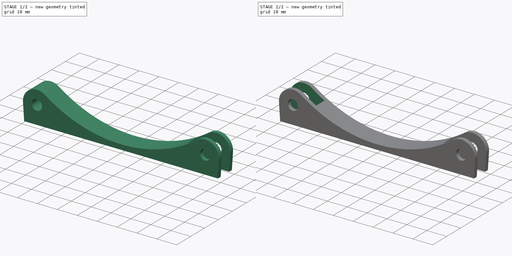
[diagram: build sequence overview — one tinted view per stage of 2, left to right]
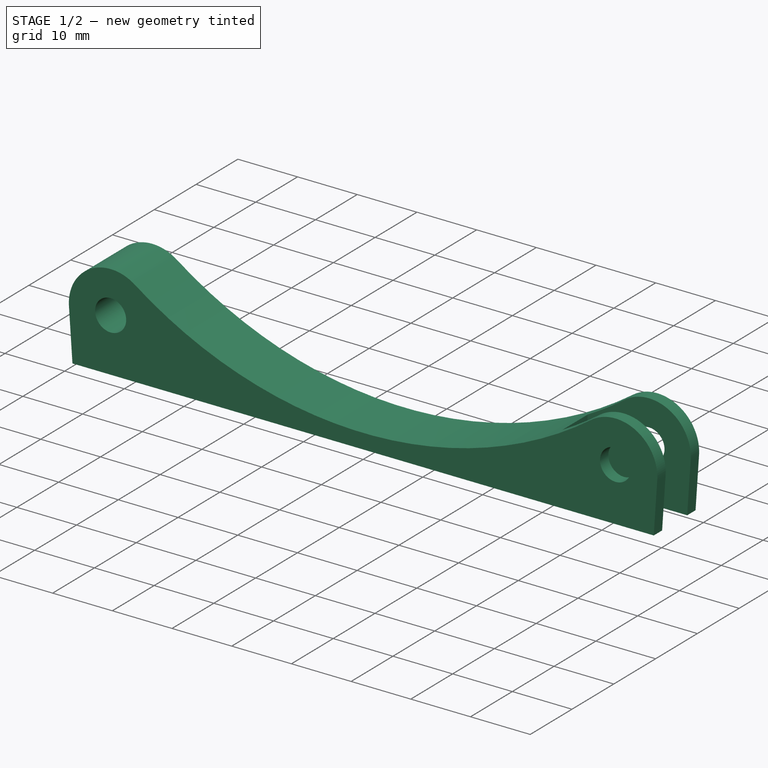
[diagram: stage 1 of 2 — iso view after this stage's code; geometry added in this stage tinted green]
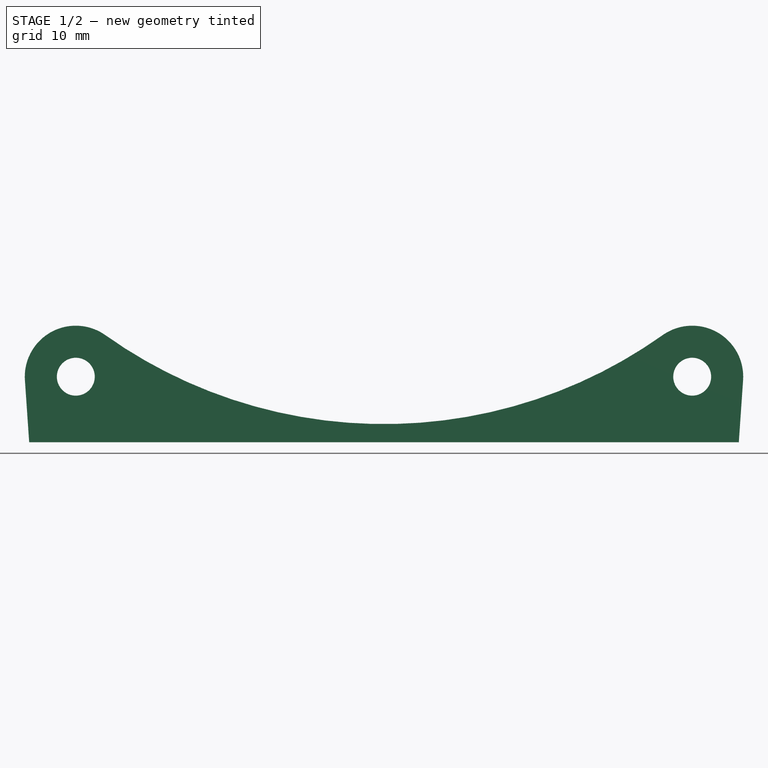
[diagram: stage 1 of 2 — front view after this stage's code; geometry added in this stage tinted green]
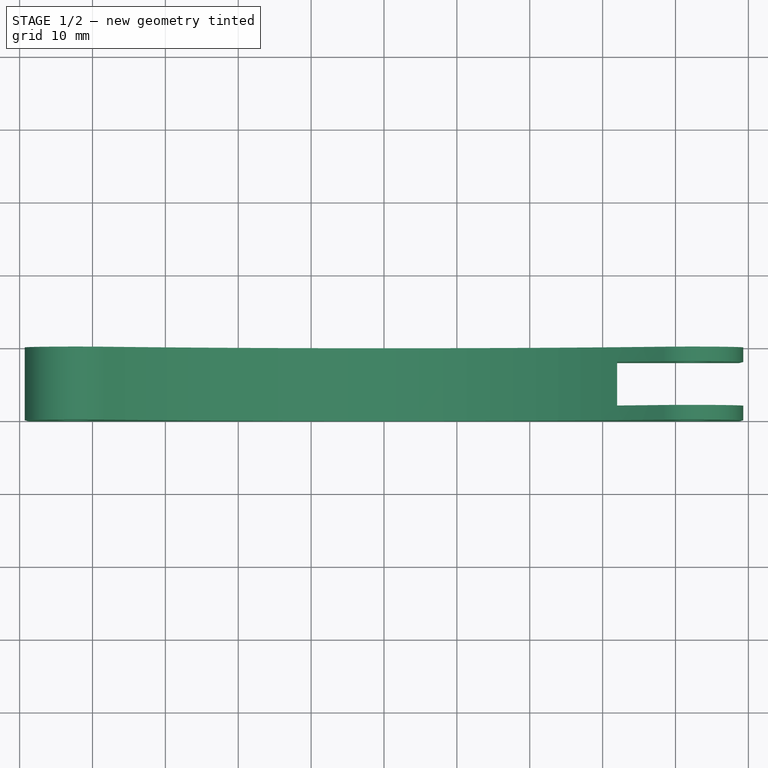
[diagram: stage 1 of 2 — top view after this stage's code; geometry added in this stage tinted green]
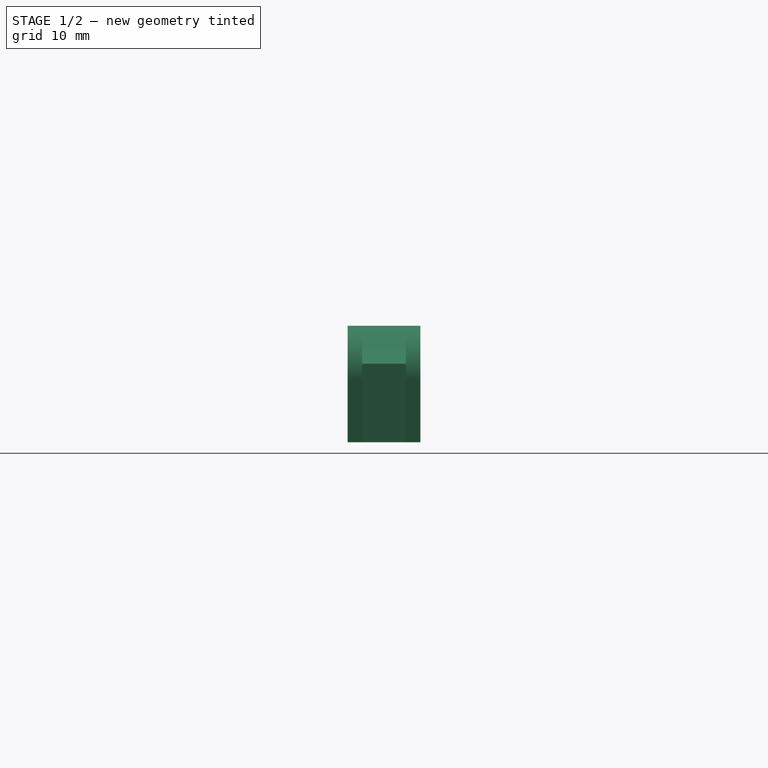
[diagram: stage 1 of 2 — right view after this stage's code; geometry added in this stage tinted green]
FCSTD DOCUMENT  (FreeCAD 0.19R24291 (Git))
Label: supportRollers
License: All rights reserved
LicenseURL: http://en.wikipedia.org/wiki/All_rights_reserved
objects: Sketcher::SketchObject×3, PartDesign::Pad×1, PartDesign::Plane×1, PartDesign::Pocket×1, PartDesign::Mirrored×1, PartDesign::Body×1
note: 10 computed .brp shape members not serialized (recipe doc carries the construction recipe); baked Part::Feature solids carry a one-line shape summary decoded from their .brp

FEATURE [Sketcher::SketchObject] Sketch
  FullyConstrained = true
  MapMode = 5
  Placement = pos=(0,0,0) rot=(1,0,0;1.5708rad)
  Support = -> [XZ_Plane]
  sketch-geometry (14):
    g0: ArcOfCircle CenterX=0 CenterY=68.5 CenterZ=0 NormalX=0 NormalY=0 NormalZ=1 AngleXU=0 Radius=66 StartAngle=4.09444 EndAngle=5.33034
    g1: GeomPoint X=0 Y=2.5 Z=0
    g2: Circle CenterX=-42.2936 CenterY=9 CenterZ=0 NormalX=0 NormalY=0 NormalZ=1 AngleXU=0 Radius=8
    g3: LineSegment StartX=-42.2936 StartY=9 StartZ=0 EndX=-38.2381 EndY=14.7055 EndZ=0
    g4: LineSegment StartX=-42.2936 StartY=1 StartZ=0 EndX=-42.2936 EndY=0 EndZ=0
    g5: ArcOfCircle CenterX=-42.2936 CenterY=9 CenterZ=0 NormalX=0 NormalY=0 NormalZ=1 AngleXU=0 Radius=7 StartAngle=0.952847 EndAngle=3.21028
    g6: LineSegment StartX=-49.2771 StartY=8.51954 StartZ=0 EndX=-48.691 EndY=0 EndZ=0
    g7: LineSegment StartX=-48.691 StartY=0 StartZ=0 EndX=48.691 EndY=0 EndZ=0
    g8: LineSegment StartX=-42.2936 StartY=9 StartZ=0 EndX=-48.691 EndY=0 EndZ=0
    g9: ArcOfCircle CenterX=42.2936 CenterY=9 CenterZ=0 NormalX=0 NormalY=0 NormalZ=1 AngleXU=0 Radius=7 StartAngle=6.21449 EndAngle=8.47193
    g10: LineSegment StartX=49.2771 StartY=8.51954 StartZ=0 EndX=48.691 EndY=0 EndZ=0
    g11: Circle CenterX=-42.2936 CenterY=9 CenterZ=0 NormalX=0 NormalY=0 NormalZ=1 AngleXU=0 Radius=2.6
    g12: Circle CenterX=42.2936 CenterY=9 CenterZ=0 NormalX=0 NormalY=0 NormalZ=1 AngleXU=0 Radius=2.6
    g13: ArcOfCircle CenterX=1.535e-13 CenterY=68.5 CenterZ=0 NormalX=0 NormalY=0 NormalZ=1 AngleXU=0 Radius=65 StartAngle=1.6478 EndAngle=7.77698
  constraints (37):
    c: PointOnObject(g0,g-2)
    c: Radius(g0) = 66
    c: PointOnObject(g1,g0)
    c: PointOnObject(g1,g-2)
    c: DistanceY(g-1,g1) = 2.5
    c: Radius(g2) = 8
    c: Coincident(g3,g2)
    c: Perpendicular(g0,g3)
    c: Distance(g3) = 7
    c: PointOnObject(g4,g2)
    c: PointOnObject(g4,g-1)
    c: Vertical(g4)
    c: Perpendicular(g2,g4)
    c: DistanceY(g4,g4) = 1
    c: Coincident(g0,g3)
    c: Horizontal(g3,g0)
    c: Coincident(g5,g2)
    c: Coincident(g5,g3)
    c: PointOnObject(g6,g-1)
    c: Coincident(g7,g6)
    c: Tangent(g6,g5) = -1.5708
    c: Coincident(g8,g2)
    c: Parallel(g8,g3)
    c: Coincident(g6,g8)
    c: Symmetric(g7,g8,g-2)
    c: Coincident(g10,g7)
    c: Tangent(g10,g9) = 1.5708
    c: Radius(g9) = 7
    c: Tangent(g9,g0) = 1.5708
    c: Coincident(g11,g2)
    c: Coincident(g12,g9)
    c: Radius(g11) = 2.6
    c: Radius(g12) = 2.6
    c: Radius(g13) = 65
    c: Symmetric(g13,g13,g-2)
    c: Tangent(g2,g13)
    c: DistanceX(g13,g13) = 10
FEATURE [PartDesign::Pad] Pad
  Direction = (1,1,1)
  Length = 10
  Length2 = 100
  Placement = pos=(0,0,0) rot=(1,0,0;1.5708rad)
  Profile = -> Sketch
  Refine = true
  Type = 0
FEATURE [Sketcher::SketchObject] Sketch001
  FullyConstrained = true
  MapMode = 5
  Placement = pos=(48.4616,7e-16,-3.33412) rot=(0.730971,0,0.682409;3.14159rad)
  Support = -> [Pad]
FEATURE [PartDesign::Plane] DatumPlane
  AttachmentOffset = pos=(0,0,50) rot=(0,0,1;0rad)
  Length = 60
  MapMode = 5
  Placement = pos=(50,-1.11e-14,1.11e-14) rot=(0.57735,0.57735,0.57735;2.0944rad)
  ResizeMode = 0
  Support = -> [YZ_Plane]
  Width = 60
FEATURE [Sketcher::SketchObject] Sketch002
  FullyConstrained = false
  MapMode = 5
  Placement = pos=(50,-1.11e-14,1.11e-14) rot=(0.57735,0.57735,0.57735;2.0944rad)
  Support = -> [DatumPlane]
  sketch-geometry (4):
    g0: LineSegment StartX=-2 StartY=-0.913862 StartZ=0 EndX=-8 EndY=-0.913862 EndZ=0
    g1: LineSegment StartX=-8 StartY=-0.913862 StartZ=0 EndX=-8 EndY=18.5601 EndZ=0
    g2: LineSegment StartX=-8 StartY=18.5601 StartZ=0 EndX=-2 EndY=18.5601 EndZ=0
    g3: LineSegment StartX=-2 StartY=18.5601 StartZ=0 EndX=-2 EndY=-0.913862 EndZ=0
  constraints (10):
    c: Coincident(g0,g1)
    c: Coincident(g1,g2)
    c: Coincident(g2,g3)
    c: Coincident(g3,g0)
    c: Horizontal(g0)
    c: Horizontal(g2)
    c: Vertical(g1)
    c: Vertical(g3)
    c: DistanceX(g0,g-1) = 2
    c: DistanceX(g0,g0) = 6
FEATURE [PartDesign::Pocket] Pocket
  BaseFeature = -> Pad
  Length = 18
  Length2 = 100
  Placement = pos=(0,0,0) rot=(1,0,0;1.5708rad)
  Profile = -> Sketch002
  Refine = true
  Type = 0
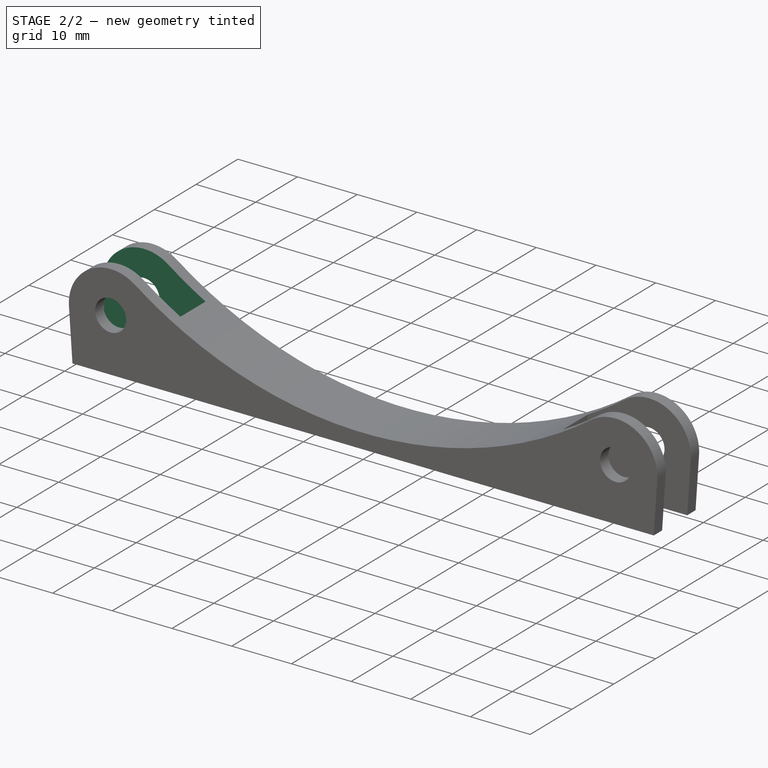
[diagram: stage 2 of 2 — iso view after this stage's code; geometry added in this stage tinted green]
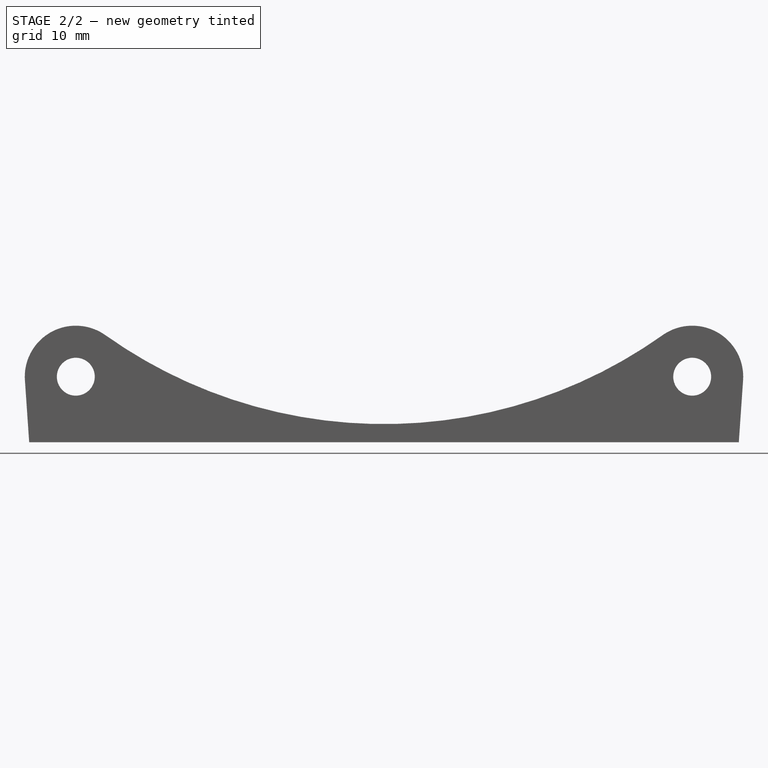
[diagram: stage 2 of 2 — front view after this stage's code; geometry added in this stage tinted green]
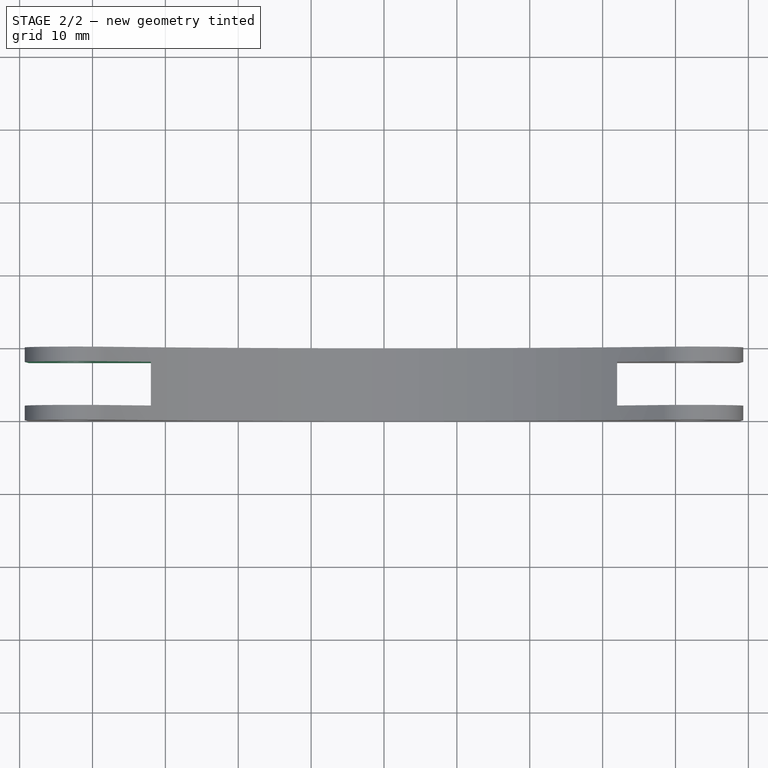
[diagram: stage 2 of 2 — top view after this stage's code; geometry added in this stage tinted green]
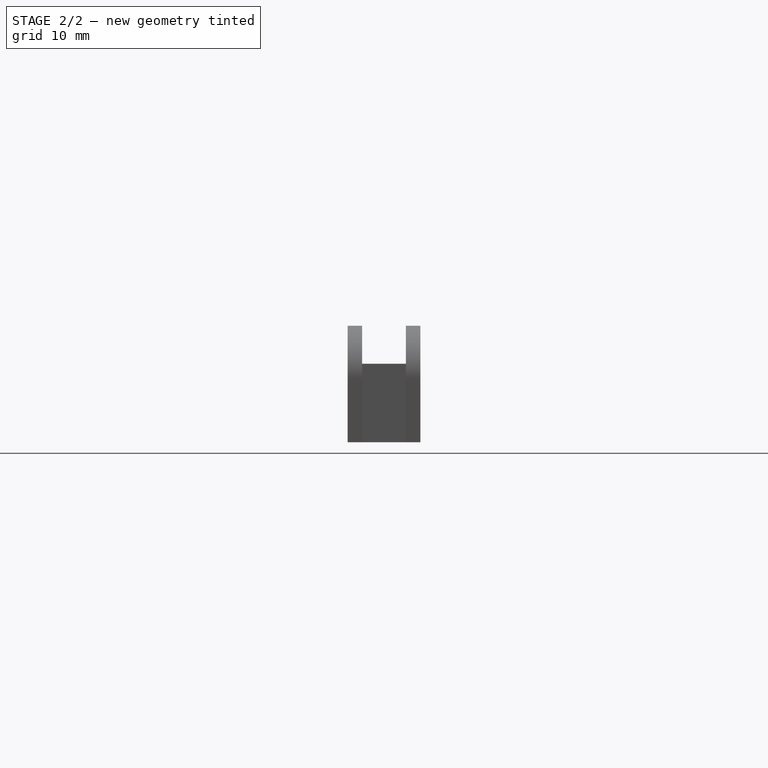
[diagram: stage 2 of 2 — right view after this stage's code; geometry added in this stage tinted green]
FEATURE [PartDesign::Mirrored] Mirrored
  BaseFeature = -> Pocket
  MirrorPlane = -> YZ_Plane
  Originals = -> [Pocket]
  Placement = pos=(0,0,0) rot=(1,0,0;1.5708rad)
  Refine = true
FEATURE [PartDesign::Body] Body
  Group = -> [Sketch,Pad,Sketch001,Sketch002,DatumPlane,Pocket,Mirrored]
  Origin = -> Origin
  Tip = -> Mirrored
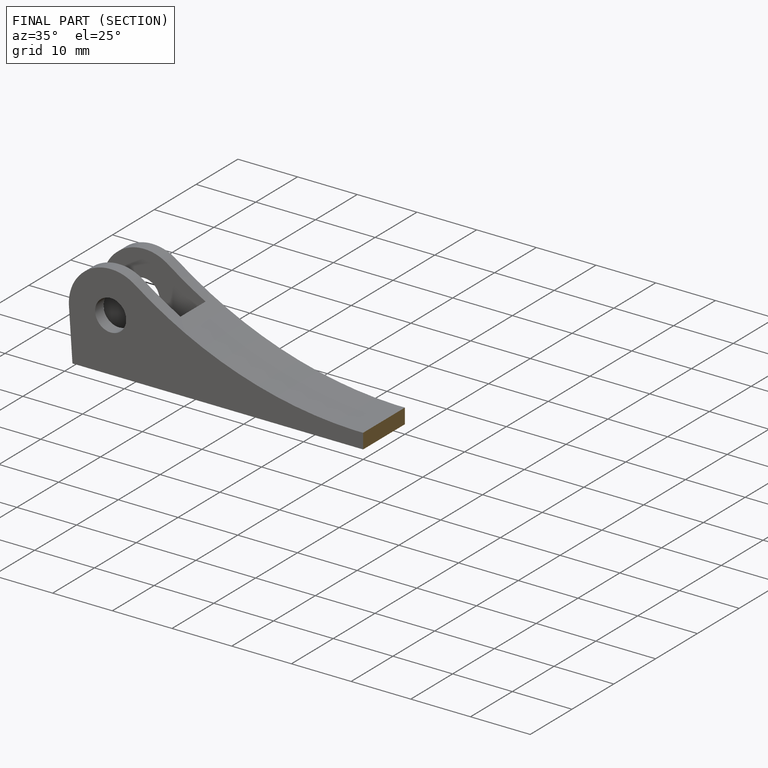
[diagram: finished part — half-section view (interior)]
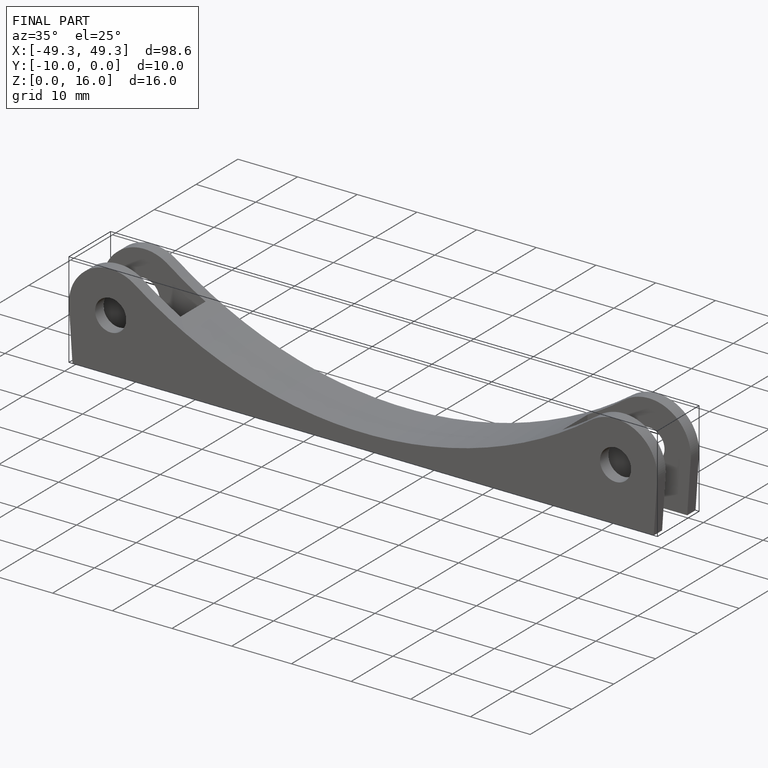
[diagram: finished part — iso view with bounding-box wireframe]
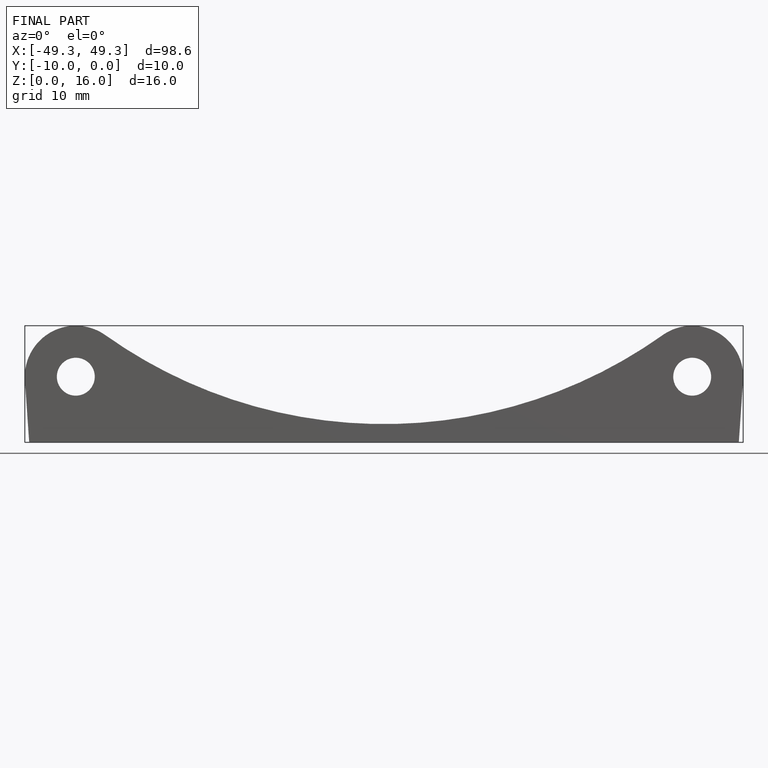
[diagram: finished part — front view with bounding-box wireframe]
